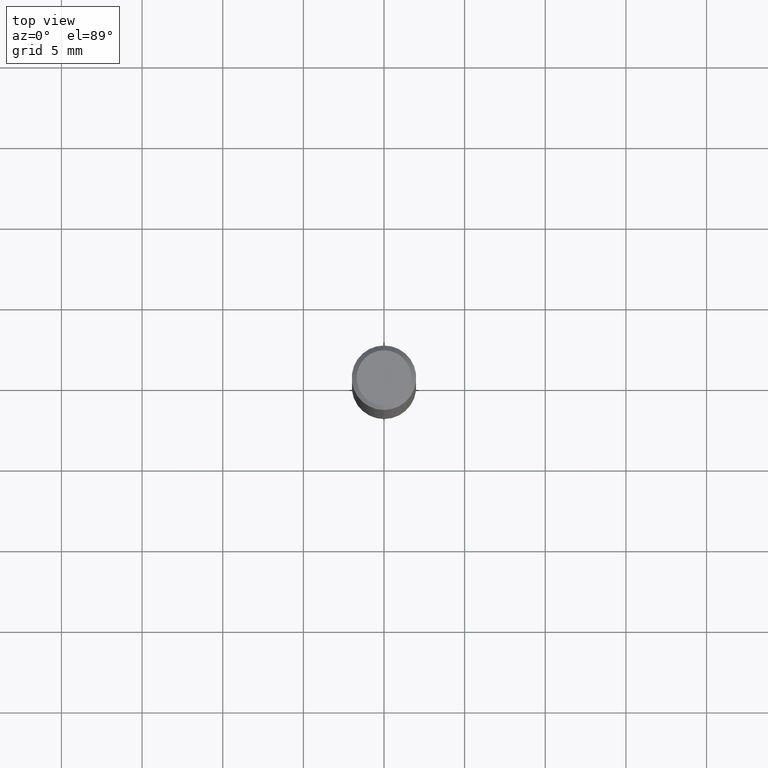
[diagram: clean part render]
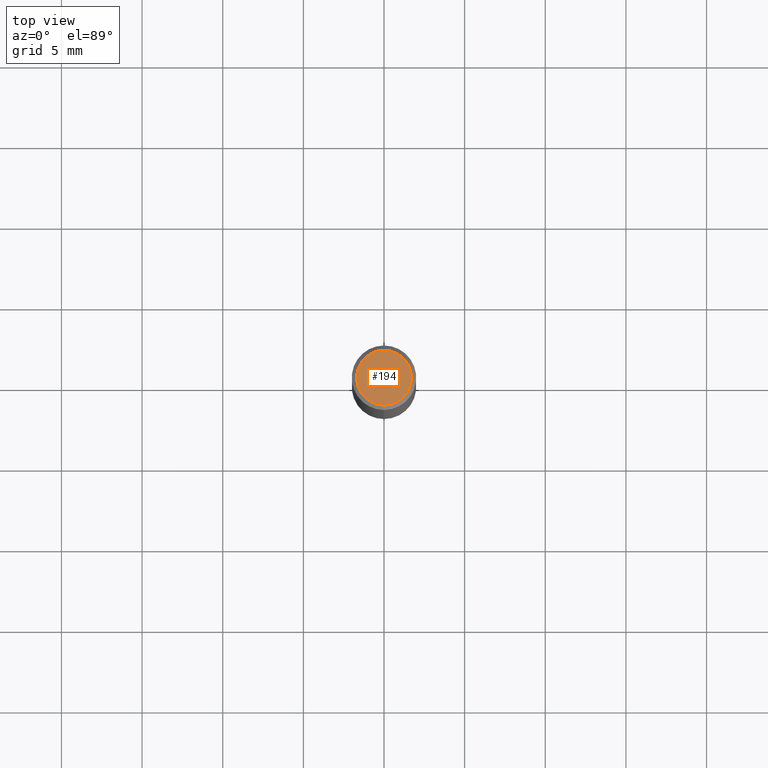
[diagram: same view with one face highlighted and labeled with its STEP entity id]
A machine part, top view. The second image highlights one B-rep face of the part: STEP entity #194.
In plain terms, the highlighted planar face has unit normal (-0, 0, 1).
Its self-contained STEP definition (entity closure, byte-faithful):
#100=VERTEX_POINT('',#241);
#148=EDGE_CURVE('',#168,#100,#299,.T.);
#168=VERTEX_POINT('',#321);
#194=ADVANCED_FACE('',(#349),#350,.T.);
#214=EDGE_CURVE('',#100,#168,#372,.T.);
#241=CARTESIAN_POINT('',(0.0,1.7,0.0));
#299=CIRCLE('',#467,1.7);
#321=CARTESIAN_POINT('',(2.08183080149804E-016,-1.7,0.0));
#349=FACE_OUTER_BOUND('',#529,.T.);
#350=PLANE('',#530);
#372=CIRCLE('',#557,1.7);
#467=AXIS2_PLACEMENT_3D('',#653,#654,#655);
#529=EDGE_LOOP('',(#707,#708));
#530=AXIS2_PLACEMENT_3D('',#709,#710,#711);
#557=AXIS2_PLACEMENT_3D('',#737,#738,#739);
#653=CARTESIAN_POINT('',(0.0,0.0,0.0));
#654=DIRECTION('',(0.0,0.0,-1.0));
#655=DIRECTION('',(0.0,1.0,0.0));
#707=ORIENTED_EDGE('',*,*,#214,.F.);
#708=ORIENTED_EDGE('',*,*,#148,.F.);
#709=CARTESIAN_POINT('',(0.0,0.85,0.0));
#710=DIRECTION('',(-0.0,0.0,1.0));
#711=DIRECTION('',(0.0,-1.0,0.0));
#737=CARTESIAN_POINT('',(0.0,0.0,0.0));
#738=DIRECTION('',(0.0,0.0,-1.0));
#739=DIRECTION('',(0.0,1.0,0.0));